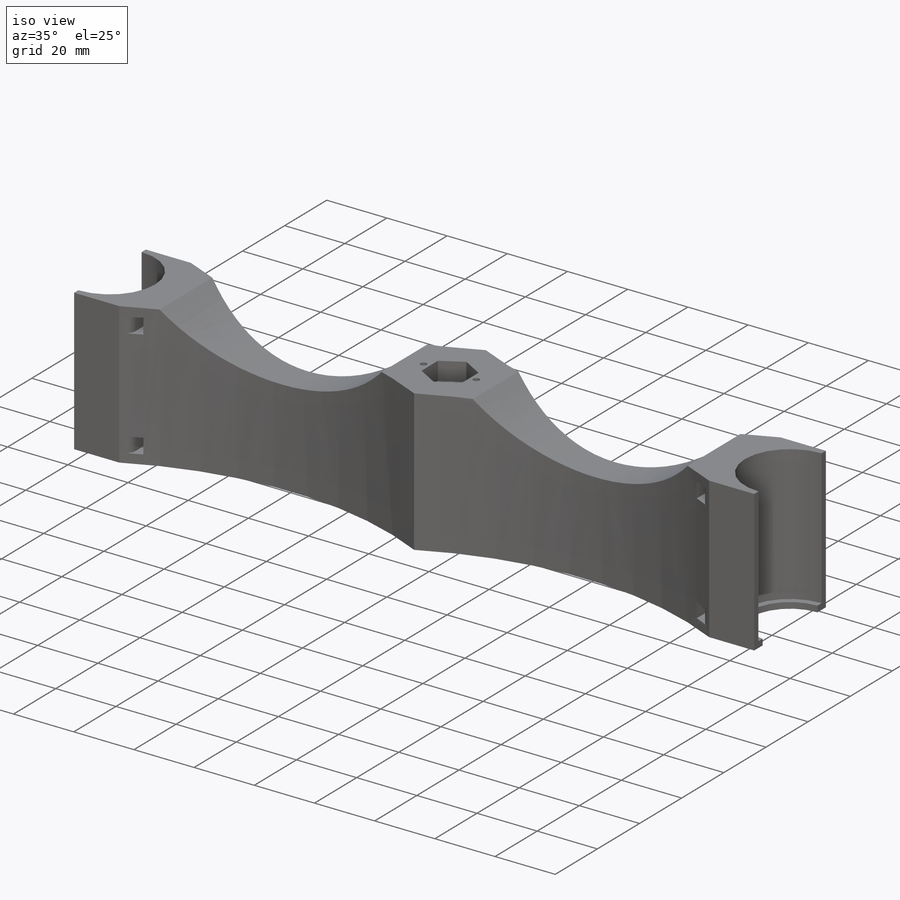
[diagram: iso view]
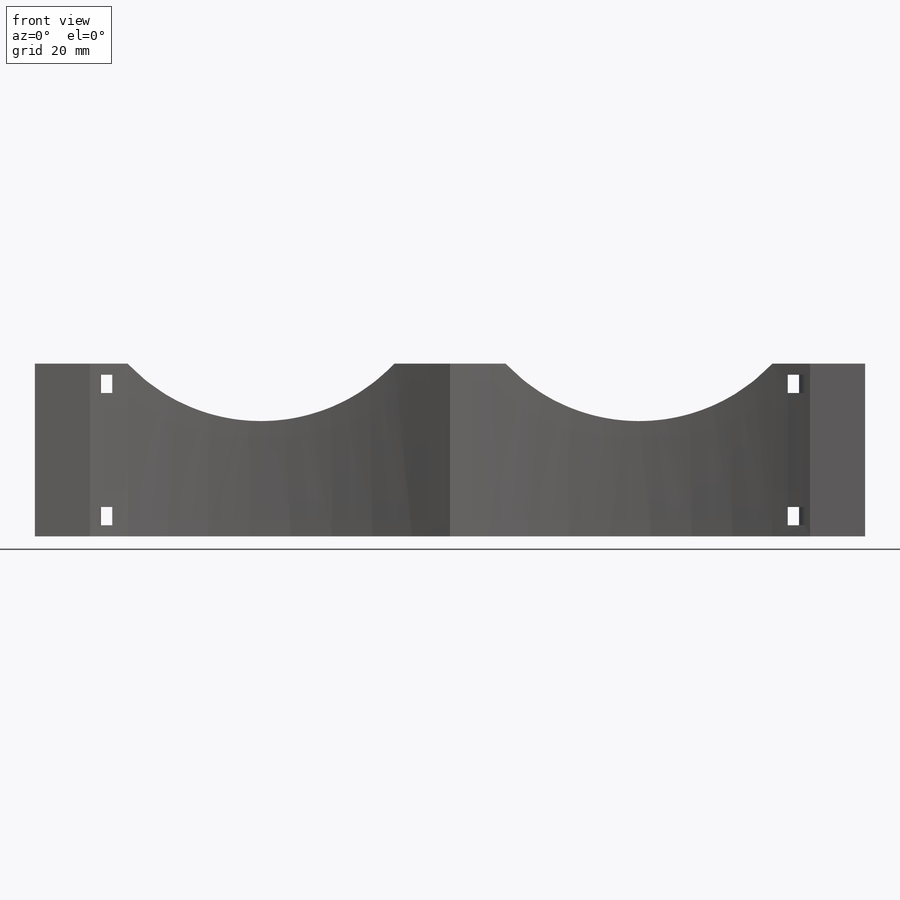
[diagram: front view]
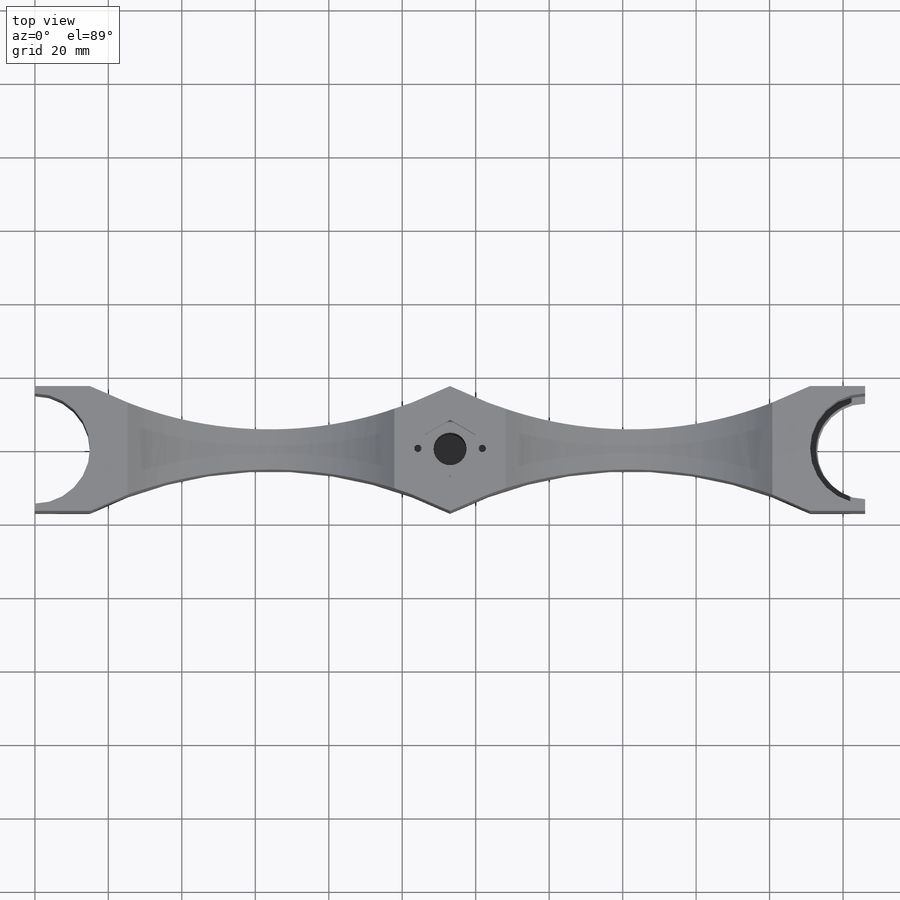
[diagram: top view]
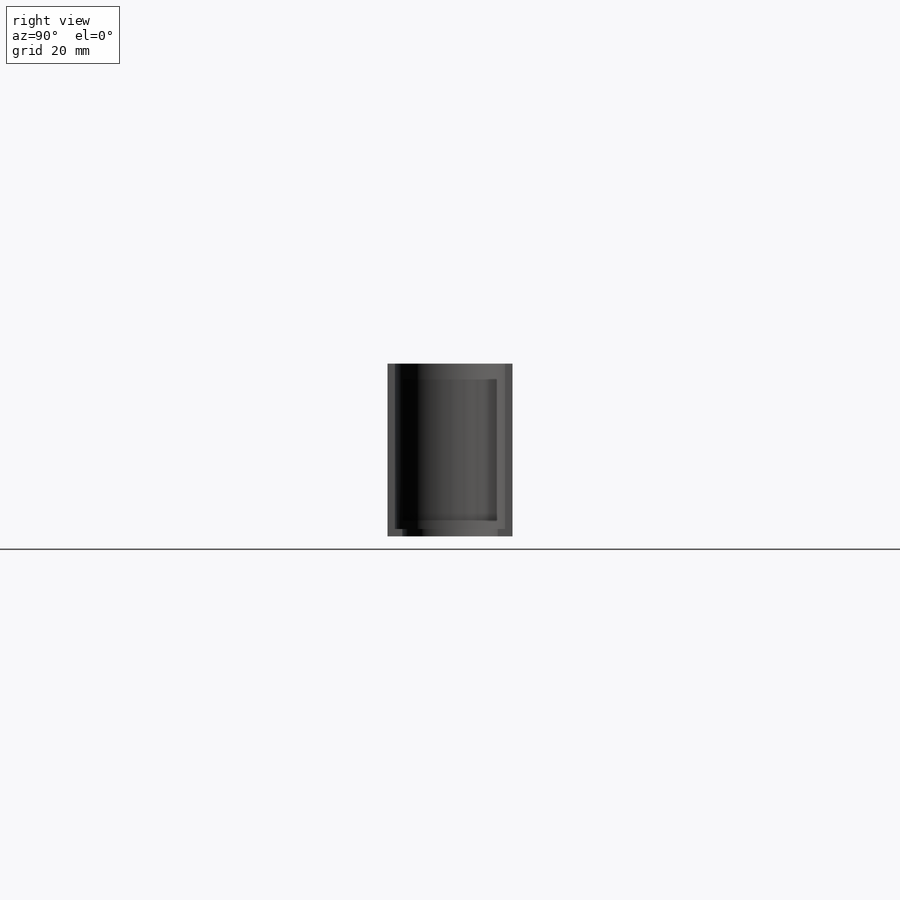
[diagram: right view]
SOLIDWORKS PART (.sldprt)
format: sldprt  version: not decoded by parser v0  size: 354,304 bytes
history: native  units: mm
features: sketch x9, cut_extrude x6, extrude x3, fillet x2, material x1, plane x1 (+11 scaffold rows collapsed)
feature tree (33):
  scaffold x11  (default folders/planes/origin — collapsed)
  material  "Copper"
  sketch  "Sketch1"  dims[c1.D1=15.0mm c1.D2=110.0mm c2.D1=45.0mm c2.D2=226.0mm c3.D1=~21.332305mm c3.D2=~22.122391mm c4.D1=113.0mm c4.D2=~58.237755mm]
  extrude  "Boss-Extrude2"  Depth=47mm
  sketch  "Sketch2"  dims[D1=9.0mm]
  cut_extrude  "Cut-Extrude1"  [1 undecoded]
  sketch  "Sketch3"
  cut_extrude  "Cut-Extrude2"  Depth=6mm
  sketch  "Sketch4"  dims[c1.D1=2.0mm c1.D2=2.0mm c2.D1=2.0mm c2.D2=2.0mm]
  cut_extrude  "Cut-Extrude3"  Depth=6mm
  plane  "Plane1"  Offset=0mm
  sketch  "Sketch5"  dims[D1=~0.799175mm]
  cut_extrude  "Cut-Extrude4"  [1 undecoded]
  sketch  "Sketch6"
  cut_extrude  "Cut-Extrude5"  Depth=6mm
  sketch  "Sketch7"
  extrude  "Boss-Extrude3"  Depth=0.2mm
  sketch  "Sketch10"  dims[D1=~47.699431mm]
  extrude  "Boss-Extrude4"  Depth=2mm
  sketch  "Sketch11"  dims[c1.D1=5.0mm c1.D2=3.0mm c2.D1=3.0mm c2.D2=18.0mm c2.D3=~26.987822mm]
  cut_extrude  "Cut-Extrude6"  [1 undecoded]
  fillet  "Fillet1"  Radius=3mm
  fillet  "Fillet2"  Radius=3mm
decode coverage: 14 of 20 modeling features carry decoded parameters
note: ~ marks probable driven/reference dimensions
note: 3 parameter values undecoded
summary: no parameter record found for 3 features
note: suppression state not decoded; provenance and decode notes live in map.json
